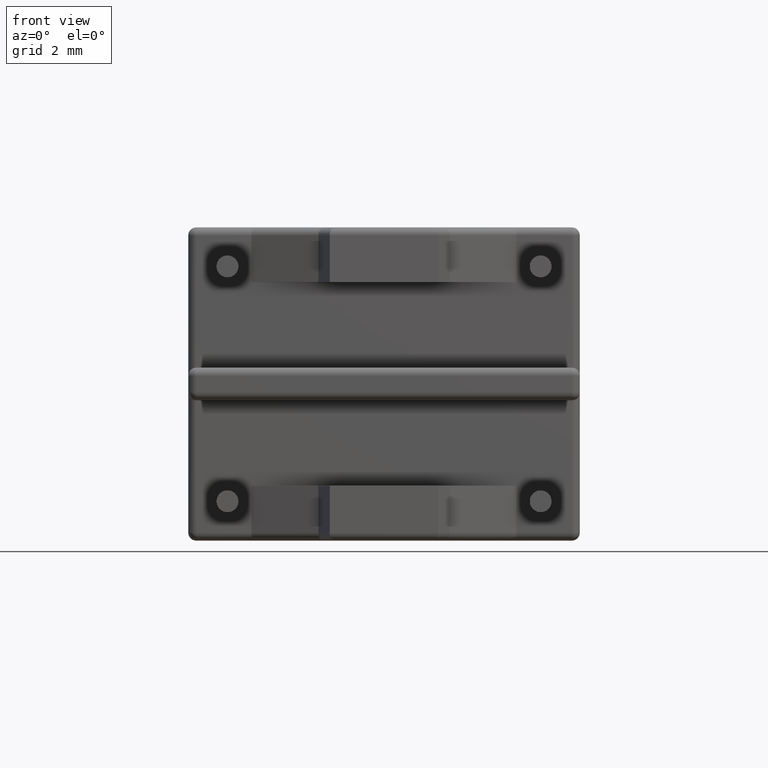
[diagram: clean part render]
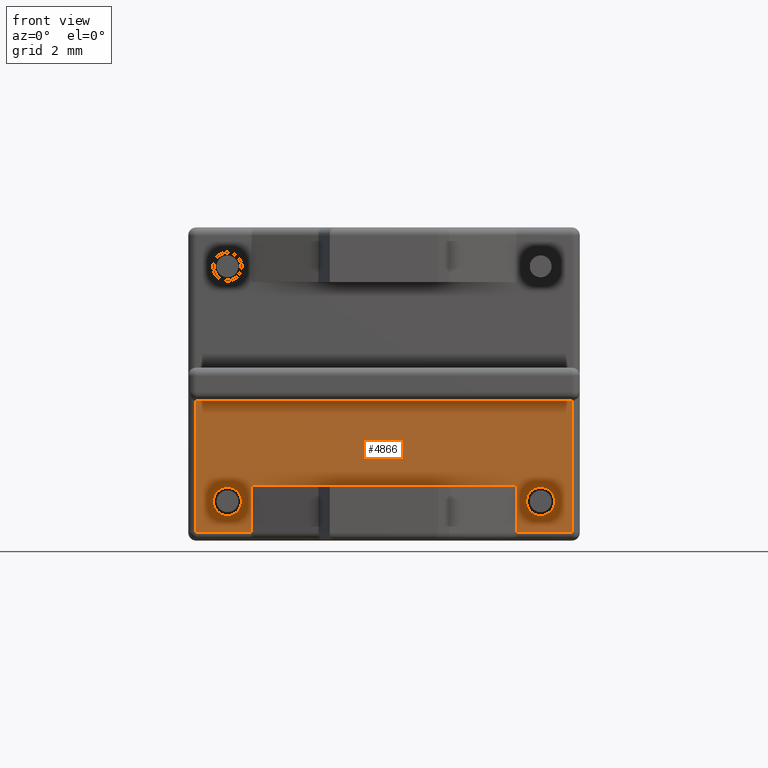
[diagram: same view with one face highlighted and labeled with its STEP entity id]
A machine part, front view. The second image highlights one B-rep face of the part: STEP entity #4866.
In plain terms, the highlighted planar face has unit normal (0, -1, 0).
Its self-contained STEP definition (entity closure, byte-faithful):
#36 = VERTEX_POINT ( 'NONE', #359 ) ;
#46 = ORIENTED_EDGE ( 'NONE', *, *, #5834, .F. ) ;
#232 = ORIENTED_EDGE ( 'NONE', *, *, #2179, .T. ) ;
#257 = EDGE_CURVE ( 'NONE', #3977, #8020, #4481, .T. ) ;
#299 = CARTESIAN_POINT ( 'NONE',  ( 1.250000000000001100, 0.0000000000000000000, -8.299999999999998900 ) ) ;
#316 = EDGE_CURVE ( 'NONE', #6085, #812, #423, .T. ) ;
#359 = CARTESIAN_POINT ( 'NONE',  ( 12.25000000000000000, 0.0000000000000000000, -5.521152175176403000 ) ) ;
#423 = CIRCLE ( 'NONE', #7695, 0.4500000000000007300 ) ;
#694 = DIRECTION ( 'NONE',  ( 0.0000000000000000000, 0.0000000000000000000, -1.000000000000000000 ) ) ;
#727 = ORIENTED_EDGE ( 'NONE', *, *, #4504, .T. ) ;
#748 = VECTOR ( 'NONE', #694, 1000.000000000000000 ) ;
#812 = VERTEX_POINT ( 'NONE', #299 ) ;
#820 = VECTOR ( 'NONE', #5110, 1000.000000000000000 ) ;
#945 = LINE ( 'NONE', #7799, #3876 ) ;
#969 = DIRECTION ( 'NONE',  ( 0.0000000000000000000, -1.000000000000000000, 0.0000000000000000000 ) ) ;
#971 = CARTESIAN_POINT ( 'NONE',  ( 1.250000000000001100, 0.0000000000000000000, -8.749999999999998200 ) ) ;
#1152 = LINE ( 'NONE', #4362, #7001 ) ;
#1284 = PLANE ( 'NONE',  #3599 ) ;
#1395 = VECTOR ( 'NONE', #1586, 1000.000000000000000 ) ;
#1472 = DIRECTION ( 'NONE',  ( 0.0000000000000000000, -1.000000000000000000, 0.0000000000000000000 ) ) ;
#1529 = DIRECTION ( 'NONE',  ( 0.0000000000000000000, -1.000000000000000000, 0.0000000000000000000 ) ) ;
#1578 = DIRECTION ( 'NONE',  ( 0.0000000000000000000, -1.000000000000000000, 0.0000000000000000000 ) ) ;
#1586 = DIRECTION ( 'NONE',  ( 0.0000000000000000000, 0.0000000000000000000, -1.000000000000000000 ) ) ;
#1871 = DIRECTION ( 'NONE',  ( 1.000000000000000000, -0.0000000000000000000, -0.0000000000000000000 ) ) ;
#1966 = CARTESIAN_POINT ( 'NONE',  ( 2.022891892314450300, 6.938893903907228400E-015, -8.250000000000000000 ) ) ;
#2010 = CIRCLE ( 'NONE', #3130, 0.4500000000000007300 ) ;
#2076 = FACE_OUTER_BOUND ( 'NONE', #7880, .T. ) ;
#2108 = DIRECTION ( 'NONE',  ( 0.0000000000000000000, 0.0000000000000000000, 1.000000000000000000 ) ) ;
#2179 = EDGE_CURVE ( 'NONE', #7341, #7832, #1152, .T. ) ;
#2242 = ORIENTED_EDGE ( 'NONE', *, *, #6124, .T. ) ;
#2397 = CARTESIAN_POINT ( 'NONE',  ( 10.47710810768555100, 0.0000000000000000000, -9.750000000000000000 ) ) ;
#2589 = ORIENTED_EDGE ( 'NONE', *, *, #3595, .F. ) ;
#2605 = VERTEX_POINT ( 'NONE', #6025 ) ;
#2652 = EDGE_LOOP ( 'NONE', ( #46, #6300 ) ) ;
#2765 = LINE ( 'NONE', #1966, #748 ) ;
#2766 = CARTESIAN_POINT ( 'NONE',  ( 10.47710810768555100, 0.0000000000000000000, -8.250000000000000000 ) ) ;
#2803 = CARTESIAN_POINT ( 'NONE',  ( 10.47710810768555100, 0.0000000000000000000, -8.250000000000000000 ) ) ;
#2956 = VECTOR ( 'NONE', #7996, 1000.000000000000000 ) ;
#3130 = AXIS2_PLACEMENT_3D ( 'NONE', #7385, #969, #6086 ) ;
#3274 = CIRCLE ( 'NONE', #6245, 0.4500000000000007300 ) ;
#3302 = VERTEX_POINT ( 'NONE', #3882 ) ;
#3326 = FACE_BOUND ( 'NONE', #5194, .T. ) ;
#3595 = EDGE_CURVE ( 'NONE', #7892, #36, #3618, .T. ) ;
#3599 = AXIS2_PLACEMENT_3D ( 'NONE', #5754, #6350, #7680 ) ;
#3618 = LINE ( 'NONE', #3765, #5120 ) ;
#3742 = LINE ( 'NONE', #8335, #820 ) ;
#3765 = CARTESIAN_POINT ( 'NONE',  ( 12.50000000000000000, 0.0000000000000000000, -5.521152175176403000 ) ) ;
#3876 = VECTOR ( 'NONE', #6533, 1000.000000000000000 ) ;
#3882 = CARTESIAN_POINT ( 'NONE',  ( 0.2499999999999999400, 0.0000000000000000000, -9.750000000000000000 ) ) ;
#3889 = CARTESIAN_POINT ( 'NONE',  ( 11.25000000000000000, 0.0000000000000000000, -8.749999999999998200 ) ) ;
#3977 = VERTEX_POINT ( 'NONE', #5542 ) ;
#4006 = ORIENTED_EDGE ( 'NONE', *, *, #7126, .T. ) ;
#4337 = LINE ( 'NONE', #7042, #7343 ) ;
#4362 = CARTESIAN_POINT ( 'NONE',  ( 12.50000000000000000, 0.0000000000000000000, -9.750000000000000000 ) ) ;
#4418 = DIRECTION ( 'NONE',  ( 1.000000000000000000, -0.0000000000000000000, -0.0000000000000000000 ) ) ;
#4481 = CIRCLE ( 'NONE', #6399, 0.4500000000000007300 ) ;
#4504 = EDGE_CURVE ( 'NONE', #7832, #36, #945, .T. ) ;
#4647 = DIRECTION ( 'NONE',  ( 0.0000000000000000000, 0.0000000000000000000, -1.000000000000000000 ) ) ;
#4822 = FACE_BOUND ( 'NONE', #2652, .T. ) ;
#4866 = ADVANCED_FACE ( 'NONE', ( #3326, #2076, #4822 ), #1284, .T. ) ;
#4910 = ORIENTED_EDGE ( 'NONE', *, *, #257, .F. ) ;
#5110 = DIRECTION ( 'NONE',  ( 1.000000000000000000, -0.0000000000000000000, -0.0000000000000000000 ) ) ;
#5120 = VECTOR ( 'NONE', #1871, 1000.000000000000000 ) ;
#5181 = LINE ( 'NONE', #6738, #2956 ) ;
#5194 = EDGE_LOOP ( 'NONE', ( #4910, #8105 ) ) ;
#5338 = EDGE_CURVE ( 'NONE', #7425, #2605, #2765, .T. ) ;
#5542 = CARTESIAN_POINT ( 'NONE',  ( 11.25000000000000000, 0.0000000000000000000, -8.299999999999998900 ) ) ;
#5722 = EDGE_CURVE ( 'NONE', #8020, #3977, #3274, .T. ) ;
#5735 = ORIENTED_EDGE ( 'NONE', *, *, #5338, .F. ) ;
#5754 = CARTESIAN_POINT ( 'NONE',  ( 0.0000000000000000000, 0.0000000000000000000, 0.0000000000000000000 ) ) ;
#5811 = VERTEX_POINT ( 'NONE', #2766 ) ;
#5834 = EDGE_CURVE ( 'NONE', #812, #6085, #2010, .T. ) ;
#6025 = CARTESIAN_POINT ( 'NONE',  ( 2.022891892314450300, 6.938893903907228400E-015, -9.750000000000000000 ) ) ;
#6085 = VERTEX_POINT ( 'NONE', #7505 ) ;
#6086 = DIRECTION ( 'NONE',  ( 0.0000000000000000000, 0.0000000000000000000, 1.000000000000000000 ) ) ;
#6087 = CARTESIAN_POINT ( 'NONE',  ( 11.25000000000000000, 0.0000000000000000000, -8.749999999999998200 ) ) ;
#6124 = EDGE_CURVE ( 'NONE', #3302, #2605, #3742, .T. ) ;
#6135 = CARTESIAN_POINT ( 'NONE',  ( 12.25000000000000000, 0.0000000000000000000, -9.750000000000000000 ) ) ;
#6245 = AXIS2_PLACEMENT_3D ( 'NONE', #3889, #1472, #4647 ) ;
#6285 = ORIENTED_EDGE ( 'NONE', *, *, #7606, .T. ) ;
#6300 = ORIENTED_EDGE ( 'NONE', *, *, #316, .F. ) ;
#6350 = DIRECTION ( 'NONE',  ( 0.0000000000000000000, -1.000000000000000000, 0.0000000000000000000 ) ) ;
#6399 = AXIS2_PLACEMENT_3D ( 'NONE', #6087, #1529, #6653 ) ;
#6401 = CARTESIAN_POINT ( 'NONE',  ( 2.022891892314450300, 6.938893903907228400E-015, -8.250000000000000000 ) ) ;
#6533 = DIRECTION ( 'NONE',  ( -0.0000000000000000000, -0.0000000000000000000, 1.000000000000000000 ) ) ;
#6650 = ORIENTED_EDGE ( 'NONE', *, *, #6862, .T. ) ;
#6653 = DIRECTION ( 'NONE',  ( 0.0000000000000000000, 0.0000000000000000000, -1.000000000000000000 ) ) ;
#6738 = CARTESIAN_POINT ( 'NONE',  ( 2.022891892314450300, 6.938893903907228400E-015, -8.250000000000000000 ) ) ;
#6771 = CARTESIAN_POINT ( 'NONE',  ( 0.2500000000000002200, 0.0000000000000000000, -5.521152175176403000 ) ) ;
#6862 = EDGE_CURVE ( 'NONE', #7892, #3302, #4337, .T. ) ;
#7001 = VECTOR ( 'NONE', #4418, 1000.000000000000000 ) ;
#7042 = CARTESIAN_POINT ( 'NONE',  ( 0.2499999999999999400, 0.0000000000000000000, -10.00000000000000000 ) ) ;
#7126 = EDGE_CURVE ( 'NONE', #5811, #7341, #8038, .T. ) ;
#7341 = VERTEX_POINT ( 'NONE', #2397 ) ;
#7343 = VECTOR ( 'NONE', #8324, 1000.000000000000000 ) ;
#7385 = CARTESIAN_POINT ( 'NONE',  ( 1.250000000000001100, 0.0000000000000000000, -8.749999999999998200 ) ) ;
#7425 = VERTEX_POINT ( 'NONE', #6401 ) ;
#7505 = CARTESIAN_POINT ( 'NONE',  ( 1.250000000000001100, 0.0000000000000000000, -9.199999999999999300 ) ) ;
#7606 = EDGE_CURVE ( 'NONE', #7425, #5811, #5181, .T. ) ;
#7680 = DIRECTION ( 'NONE',  ( 0.0000000000000000000, -0.0000000000000000000, -1.000000000000000000 ) ) ;
#7695 = AXIS2_PLACEMENT_3D ( 'NONE', #971, #1578, #2108 ) ;
#7799 = CARTESIAN_POINT ( 'NONE',  ( 12.25000000000000000, 0.0000000000000000000, -5.521152175176403000 ) ) ;
#7832 = VERTEX_POINT ( 'NONE', #6135 ) ;
#7880 = EDGE_LOOP ( 'NONE', ( #2589, #6650, #2242, #5735, #6285, #4006, #232, #727 ) ) ;
#7892 = VERTEX_POINT ( 'NONE', #6771 ) ;
#7996 = DIRECTION ( 'NONE',  ( 1.000000000000000000, -8.207613487920055600E-016, 0.0000000000000000000 ) ) ;
#8020 = VERTEX_POINT ( 'NONE', #8185 ) ;
#8038 = LINE ( 'NONE', #2803, #1395 ) ;
#8105 = ORIENTED_EDGE ( 'NONE', *, *, #5722, .F. ) ;
#8185 = CARTESIAN_POINT ( 'NONE',  ( 11.25000000000000000, 0.0000000000000000000, -9.199999999999999300 ) ) ;
#8324 = DIRECTION ( 'NONE',  ( -0.0000000000000000000, -0.0000000000000000000, -1.000000000000000000 ) ) ;
#8335 = CARTESIAN_POINT ( 'NONE',  ( 2.022891892314450300, 0.0000000000000000000, -9.750000000000000000 ) ) ;